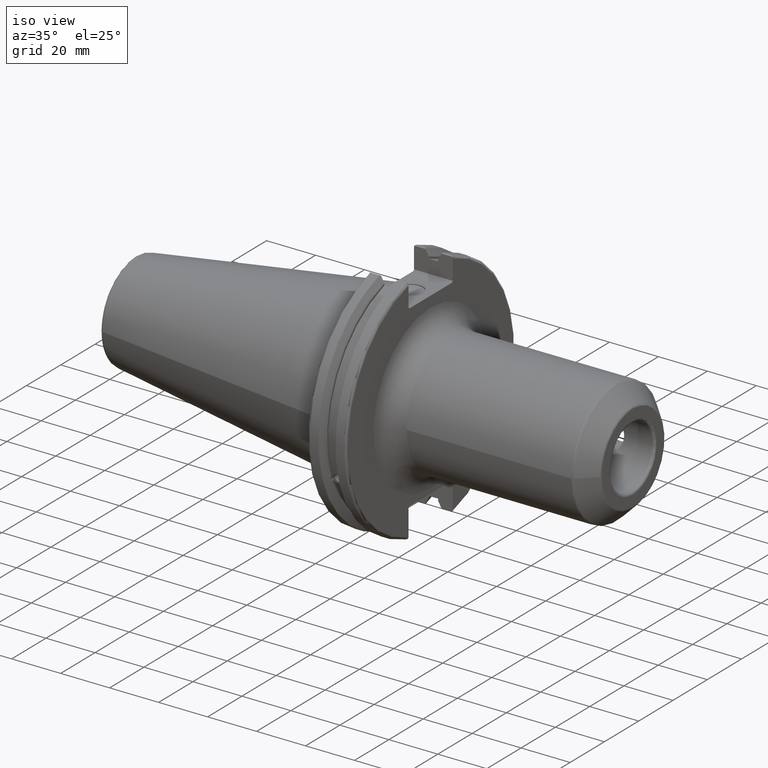
[diagram: clean part render]
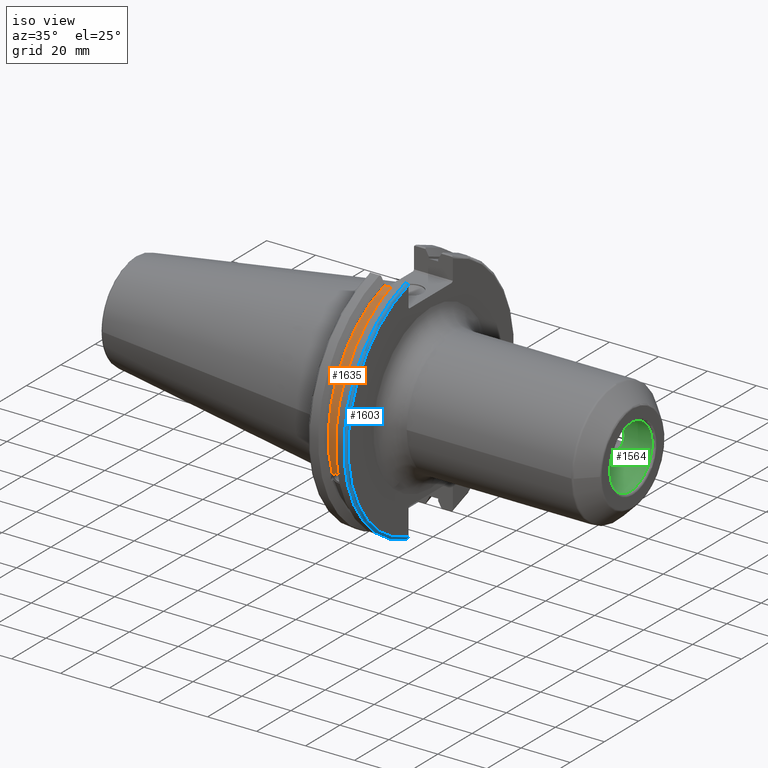
[diagram: same view with three faces highlighted in distinct colors, each labeled with its STEP entity id]
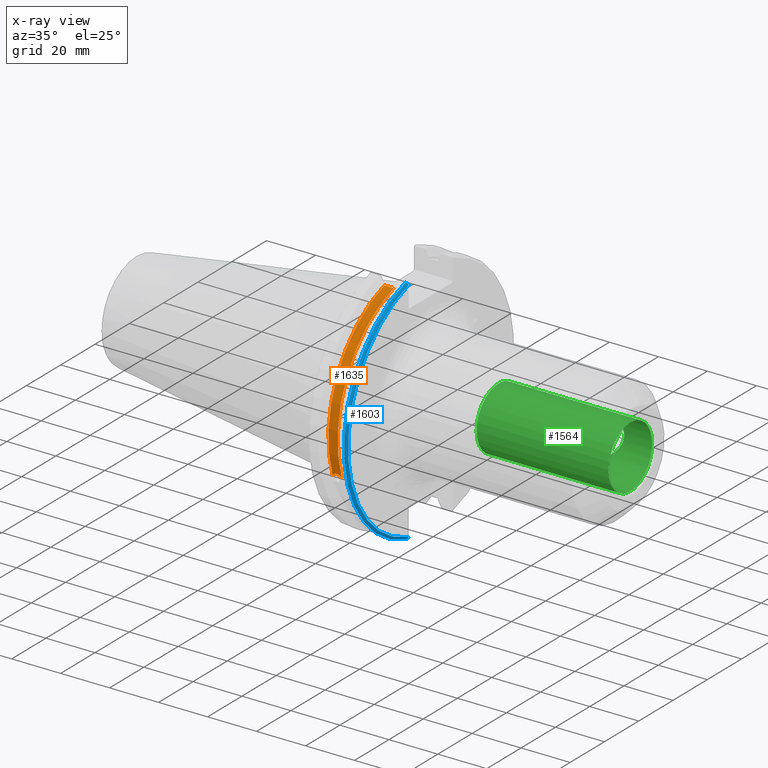
[diagram: x-ray of the same camera — body ghosted, the three highlighted faces saturated]
A machine part, iso view with three faces highlighted in distinct colors.
The next image is the same camera in x-ray (body ghosted, the three faces saturated) — at least one of them is partly hidden behind the body in this view.
Their STEP definitions:

[orange] entity #1635 — the highlighted cylindrical surface (partial cylindrical patch) has radius 45.6435 mm, axis along (1, 0, 0).
#205=FACE_OUTER_BOUND('',#320,.T.);
#320=EDGE_LOOP('',(#1493,#1494,#1495,#1496));
#347=B_SPLINE_CURVE_WITH_KNOTS('',3,(#2728,#2729,#2730,#2731,#2732,#2733,
#2734,#2735,#2736,#2737,#2738,#2739,#2740,#2741),.UNSPECIFIED.,.F.,.F.,
(4,2,2,2,2,2,4),(0.40154831257669,0.474697095495631,0.553813286063443,0.632929476631254,
0.712045667199066,0.791161857766877,0.864310640685818),.UNSPECIFIED.);
#444=LINE('',#3217,#538);
#538=VECTOR('',#2142,10.);
#640=CIRCLE('',#1826,45.6435);
#642=CIRCLE('',#1830,45.6435);
#699=VERTEX_POINT('',#2725);
#700=VERTEX_POINT('',#2727);
#783=VERTEX_POINT('',#3214);
#784=VERTEX_POINT('',#3216);
#877=EDGE_CURVE('',#700,#699,#347,.T.);
#988=EDGE_CURVE('',#784,#783,#444,.T.);
#1038=EDGE_CURVE('',#783,#700,#640,.T.);
#1040=EDGE_CURVE('',#784,#699,#642,.T.);
#1493=ORIENTED_EDGE('',*,*,#877,.T.);
#1494=ORIENTED_EDGE('',*,*,#1040,.F.);
#1495=ORIENTED_EDGE('',*,*,#988,.T.);
#1496=ORIENTED_EDGE('',*,*,#1038,.T.);
#1550=CYLINDRICAL_SURFACE('',#1829,45.6435);
#1635=ADVANCED_FACE('',(#205),#1550,.T.);
#1826=AXIS2_PLACEMENT_3D('',#3366,#2253,#2254);
#1829=AXIS2_PLACEMENT_3D('',#3369,#2259,#2260);
#1830=AXIS2_PLACEMENT_3D('',#3370,#2261,#2262);
#2142=DIRECTION('',(-1.,0.,0.));
#2253=DIRECTION('center_axis',(1.,0.,0.));
#2254=DIRECTION('ref_axis',(0.,0.,-1.));
#2259=DIRECTION('center_axis',(1.,0.,0.));
#2260=DIRECTION('ref_axis',(0.,-0.888619069115281,0.458645996390125));
#2261=DIRECTION('center_axis',(1.,0.,0.));
#2262=DIRECTION('ref_axis',(0.,0.,-1.));
#2725=CARTESIAN_POINT('',(13.0491,-43.1779814500336,-14.7983448449669));
#2727=CARTESIAN_POINT('',(9.2191,-43.1779814500336,-14.7983448449669));
#2728=CARTESIAN_POINT('Ctrl Pts',(9.2191,-43.1779814500335,-14.7983448449669));
#2729=CARTESIAN_POINT('Ctrl Pts',(9.32532177598176,-43.2545173750974,-14.5750315766731));
#2730=CARTESIAN_POINT('Ctrl Pts',(9.47680807557666,-43.3223492818373,-14.3712521044637));
#2731=CARTESIAN_POINT('Ctrl Pts',(9.83560503400179,-43.4340904392251,-14.0300988117073));
#2732=CARTESIAN_POINT('Ctrl Pts',(10.0717203280543,-43.4832903960863,-13.8760243976176));
#2733=CARTESIAN_POINT('Ctrl Pts',(10.5891059167872,-43.54802519266,-13.6715068146718));
#2734=CARTESIAN_POINT('Ctrl Pts',(10.870379364774,-43.5636826100883,-13.6211104428929));
#2735=CARTESIAN_POINT('Ctrl Pts',(11.397820635226,-43.5636826100883,-13.6211104428929));
#2736=CARTESIAN_POINT('Ctrl Pts',(11.6790940832128,-43.54802519266,-13.6715068146718));
#2737=CARTESIAN_POINT('Ctrl Pts',(12.1964796719457,-43.4832903960863,-13.8760243976176));
#2738=CARTESIAN_POINT('Ctrl Pts',(12.4325949659982,-43.4340904392251,-14.0300988117073));
#2739=CARTESIAN_POINT('Ctrl Pts',(12.7913919244233,-43.3223492818373,-14.3712521044637));
#2740=CARTESIAN_POINT('Ctrl Pts',(12.9428782240182,-43.2545173750974,-14.5750315766731));
#2741=CARTESIAN_POINT('Ctrl Pts',(13.0491,-43.1779814500335,-14.7983448449669));
#3214=CARTESIAN_POINT('',(9.2191,-12.95,43.7678716897452));
#3216=CARTESIAN_POINT('',(13.0491,-12.95,43.7678716897452));
#3217=CARTESIAN_POINT('',(11.1341,-12.95,43.7678716897452));
#3366=CARTESIAN_POINT('Origin',(9.2191,0.,0.));
#3369=CARTESIAN_POINT('Origin',(11.1341,0.,0.));
#3370=CARTESIAN_POINT('Origin',(13.0491,0.,0.));

[blue] entity #1603 — the highlighted toroidal blend (fillet) surface has major radius 48.2125 mm and minor (blend) radius 1 mm.
#39=TOROIDAL_SURFACE('',#1779,48.2125,1.);
#173=FACE_OUTER_BOUND('',#287,.T.);
#287=EDGE_LOOP('',(#1328,#1329,#1330,#1331,#1332,#1333));
#365=B_SPLINE_CURVE_WITH_KNOTS('',3,(#3167,#3168,#3169,#3170,#3171,#3172),
 .UNSPECIFIED.,.F.,.F.,(4,2,4),(0.097707143645253,0.112358403262293,0.150882178076498),
 .UNSPECIFIED.);
#366=B_SPLINE_CURVE_WITH_KNOTS('',3,(#3174,#3175,#3176,#3177,#3178,#3179),
 .UNSPECIFIED.,.F.,.F.,(4,2,4),(0.452859694247731,0.491383469061936,0.506034728678978),
 .UNSPECIFIED.);
#367=B_SPLINE_CURVE_WITH_KNOTS('',3,(#3181,#3182,#3183,#3184,#3185,#3186,
#3187,#3188),.UNSPECIFIED.,.F.,.F.,(4,2,2,4),(-0.104075769062722,-0.0730268503455477,
-0.0343639873656263,0.),.UNSPECIFIED.);
#368=B_SPLINE_CURVE_WITH_KNOTS('',3,(#3191,#3192,#3193,#3194,#3195,#3196,
#3197,#3198),.UNSPECIFIED.,.F.,.F.,(4,2,2,4),(0.,0.0364336453281818,0.0778720357014993,
0.104197480645881),.UNSPECIFIED.);
#587=CIRCLE('',#1704,48.2125);
#624=CIRCLE('',#1780,49.2125);
#677=VERTEX_POINT('',#2510);
#678=VERTEX_POINT('',#2512);
#776=VERTEX_POINT('',#3166);
#777=VERTEX_POINT('',#3173);
#778=VERTEX_POINT('',#3180);
#779=VERTEX_POINT('',#3189);
#850=EDGE_CURVE('',#678,#677,#587,.T.);
#978=EDGE_CURVE('',#776,#678,#365,.T.);
#979=EDGE_CURVE('',#677,#777,#366,.T.);
#980=EDGE_CURVE('',#777,#778,#367,.T.);
#981=EDGE_CURVE('',#778,#779,#624,.T.);
#982=EDGE_CURVE('',#779,#776,#368,.T.);
#1328=ORIENTED_EDGE('',*,*,#978,.T.);
#1329=ORIENTED_EDGE('',*,*,#850,.T.);
#1330=ORIENTED_EDGE('',*,*,#979,.T.);
#1331=ORIENTED_EDGE('',*,*,#980,.T.);
#1332=ORIENTED_EDGE('',*,*,#981,.T.);
#1333=ORIENTED_EDGE('',*,*,#982,.T.);
#1603=ADVANCED_FACE('',(#173),#39,.T.);
#1704=AXIS2_PLACEMENT_3D('',#2513,#1930,#1931);
#1779=AXIS2_PLACEMENT_3D('',#3165,#2133,#2134);
#1780=AXIS2_PLACEMENT_3D('',#3190,#2135,#2136);
#1930=DIRECTION('center_axis',(-1.,0.,0.));
#1931=DIRECTION('ref_axis',(0.,-1.,1.60812264967664E-16));
#2133=DIRECTION('center_axis',(1.,0.,0.));
#2134=DIRECTION('ref_axis',(0.,0.,-1.));
#2135=DIRECTION('center_axis',(1.,0.,0.));
#2136=DIRECTION('ref_axis',(0.,-1.,1.60812264967664E-16));
#2510=CARTESIAN_POINT('',(19.05,-12.95,46.4407434937254));
#2512=CARTESIAN_POINT('',(19.05,-12.95,-46.4407434937254));
#2513=CARTESIAN_POINT('Origin',(19.05,0.,0.));
#3165=CARTESIAN_POINT('Origin',(18.05,0.,0.));
#3166=CARTESIAN_POINT('',(18.9055020570566,-12.95,-46.9780755322917));
#3167=CARTESIAN_POINT('Ctrl Pts',(18.9055020570566,-12.95,-46.9780755322917));
#3168=CARTESIAN_POINT('Ctrl Pts',(18.9322353702005,-12.95,-46.9322596399785));
#3169=CARTESIAN_POINT('Ctrl Pts',(18.9549831813775,-12.95,-46.8849952622217));
#3170=CARTESIAN_POINT('Ctrl Pts',(19.0209992543299,-12.95,-46.7204975987179));
#3171=CARTESIAN_POINT('Ctrl Pts',(19.05,-12.95,-46.5691560764394));
#3172=CARTESIAN_POINT('Ctrl Pts',(19.05,-12.95,-46.4407434937254));
#3173=CARTESIAN_POINT('',(18.9055020570566,-12.95,46.9780755322918));
#3174=CARTESIAN_POINT('Ctrl Pts',(19.05,-12.95,46.4407434937254));
#3175=CARTESIAN_POINT('Ctrl Pts',(19.05,-12.95,46.5691560764394));
#3176=CARTESIAN_POINT('Ctrl Pts',(19.0209992543299,-12.95,46.7204975987179));
#3177=CARTESIAN_POINT('Ctrl Pts',(18.9549831813775,-12.95,46.8849952622217));
#3178=CARTESIAN_POINT('Ctrl Pts',(18.9322353702005,-12.95,46.9322596399785));
#3179=CARTESIAN_POINT('Ctrl Pts',(18.9055020570566,-12.95,46.9780755322918));
#3180=CARTESIAN_POINT('',(18.05,-13.4317035994433,47.3440544806494));
#3181=CARTESIAN_POINT('Ctrl Pts',(18.9055020570566,-12.95,46.9780755322918));
#3182=CARTESIAN_POINT('Ctrl Pts',(18.8571496772125,-13.0300321736484,47.0388807469102));
#3183=CARTESIAN_POINT('Ctrl Pts',(18.792640282015,-13.1083611826073,47.0983919657547));
#3184=CARTESIAN_POINT('Ctrl Pts',(18.6399248789208,-13.2478194810695,47.2043467509586));
#3185=CARTESIAN_POINT('Ctrl Pts',(18.5186188350904,-13.3242014686233,47.2623787015413));
#3186=CARTESIAN_POINT('Ctrl Pts',(18.2983889675417,-13.4067722493645,47.3251126473446));
#3187=CARTESIAN_POINT('Ctrl Pts',(18.1645466245521,-13.4317035994433,47.3440544806494));
#3188=CARTESIAN_POINT('Ctrl Pts',(18.05,-13.4317035994433,47.3440544806494));
#3189=CARTESIAN_POINT('',(18.05,-13.4317035994433,-47.3440544806494));
#3190=CARTESIAN_POINT('Origin',(18.05,0.,0.));
#3191=CARTESIAN_POINT('Ctrl Pts',(18.05,-13.4317035994433,-47.3440544806494));
#3192=CARTESIAN_POINT('Ctrl Pts',(18.1714454844273,-13.4317035994433,-47.3440544806494));
#3193=CARTESIAN_POINT('Ctrl Pts',(18.3128758164404,-13.4037095171132,-47.3227857070233));
#3194=CARTESIAN_POINT('Ctrl Pts',(18.54495745946,-13.3111366376071,-47.2524525703658));
#3195=CARTESIAN_POINT('Ctrl Pts',(18.6710431007969,-13.2254637570201,-47.1873617743322));
#3196=CARTESIAN_POINT('Ctrl Pts',(18.811782280389,-13.0847856162862,-47.0804802022157));
#3197=CARTESIAN_POINT('Ctrl Pts',(18.8641312352177,-13.0184763978125,-47.0301011349397));
#3198=CARTESIAN_POINT('Ctrl Pts',(18.9055020570566,-12.95,-46.9780755322917));

[green] entity #1564 — the highlighted cylindrical surface (bore or boss wall) has radius 12.7 mm, axis along (1, 0, 0).
#62=FACE_BOUND('',#231,.T.);
#63=FACE_BOUND('',#232,.T.);
#134=FACE_OUTER_BOUND('',#230,.T.);
#230=EDGE_LOOP('',(#1104,#1105,#1106,#1107,#1108));
#231=EDGE_LOOP('',(#1109,#1110));
#232=EDGE_LOOP('',(#1111,#1112));
#330=B_SPLINE_CURVE_WITH_KNOTS('',3,(#2291,#2292,#2293,#2294,#2295,#2296,
#2297,#2298,#2299,#2300,#2301,#2302,#2303,#2304,#2305,#2306,#2307,#2308,
#2309,#2310,#2311,#2312,#2313,#2314,#2315,#2316),.UNSPECIFIED.,.F.,.F.,
(4,2,2,2,2,2,2,2,2,2,2,2,4),(0.,0.342831187342052,0.685662374684105,1.02424067190905,
1.36281896913399,1.70139726635893,2.03997556358388,2.38280675092593,2.72563793826798,
3.06846912561003,3.41130031295209,3.74987861017703,4.08845690740197),
 .UNSPECIFIED.);
#331=B_SPLINE_CURVE_WITH_KNOTS('',3,(#2317,#2318,#2319,#2320,#2321,#2322,
#2323,#2324,#2325,#2326),.UNSPECIFIED.,.F.,.F.,(4,2,2,2,4),(4.08845690740197,
4.42703520462692,4.76561350185186,5.10844468919391,5.45127587653596),
 .UNSPECIFIED.);
#334=B_SPLINE_CURVE_WITH_KNOTS('',3,(#2376,#2377,#2378,#2379,#2380,#2381,
#2382,#2383,#2384,#2385,#2386,#2387,#2388,#2389,#2390,#2391,#2392,#2393,
#2394,#2395,#2396,#2397,#2398,#2399,#2400,#2401),.UNSPECIFIED.,.F.,.F.,
(4,2,2,2,2,2,2,2,2,2,2,2,4),(0.,0.342831187342052,0.685662374684103,1.02424067190905,
1.36281896913399,1.70139726635893,2.03997556358388,2.38280675092593,2.72563793826798,
3.06846912561003,3.41130031295208,3.74987861017703,4.08845690740197),
 .UNSPECIFIED.);
#335=B_SPLINE_CURVE_WITH_KNOTS('',3,(#2402,#2403,#2404,#2405,#2406,#2407,
#2408,#2409,#2410,#2411),.UNSPECIFIED.,.F.,.F.,(4,2,2,2,4),(4.08845690740197,
4.42703520462691,4.76561350185186,5.10844468919391,5.45127587653596),
 .UNSPECIFIED.);
#382=LINE('',#2492,#476);
#476=VECTOR('',#1912,12.7);
#580=CIRCLE('',#1694,12.7);
#581=CIRCLE('',#1695,12.7);
#583=CIRCLE('',#1698,12.7);
#646=VERTEX_POINT('',#2288);
#647=VERTEX_POINT('',#2290);
#652=VERTEX_POINT('',#2373);
#653=VERTEX_POINT('',#2375);
#667=VERTEX_POINT('',#2485);
#668=VERTEX_POINT('',#2486);
#669=VERTEX_POINT('',#2491);
#809=EDGE_CURVE('',#647,#646,#330,.T.);
#810=EDGE_CURVE('',#646,#647,#331,.T.);
#817=EDGE_CURVE('',#653,#652,#334,.T.);
#818=EDGE_CURVE('',#652,#653,#335,.T.);
#837=EDGE_CURVE('',#667,#668,#580,.T.);
#838=EDGE_CURVE('',#668,#667,#581,.T.);
#840=EDGE_CURVE('',#668,#669,#382,.T.);
#841=EDGE_CURVE('',#669,#669,#583,.T.);
#1104=ORIENTED_EDGE('',*,*,#837,.F.);
#1105=ORIENTED_EDGE('',*,*,#838,.F.);
#1106=ORIENTED_EDGE('',*,*,#840,.T.);
#1107=ORIENTED_EDGE('',*,*,#841,.F.);
#1108=ORIENTED_EDGE('',*,*,#840,.F.);
#1109=ORIENTED_EDGE('',*,*,#809,.T.);
#1110=ORIENTED_EDGE('',*,*,#810,.T.);
#1111=ORIENTED_EDGE('',*,*,#817,.T.);
#1112=ORIENTED_EDGE('',*,*,#818,.T.);
#1527=CYLINDRICAL_SURFACE('',#1697,12.7);
#1564=ADVANCED_FACE('',(#134,#62,#63),#1527,.F.);
#1694=AXIS2_PLACEMENT_3D('',#2487,#1904,#1905);
#1695=AXIS2_PLACEMENT_3D('',#2488,#1906,#1907);
#1697=AXIS2_PLACEMENT_3D('',#2490,#1910,#1911);
#1698=AXIS2_PLACEMENT_3D('',#2493,#1913,#1914);
#1904=DIRECTION('center_axis',(-1.,0.,0.));
#1905=DIRECTION('ref_axis',(0.,-1.,1.83697019872103E-16));
#1906=DIRECTION('center_axis',(-1.,0.,0.));
#1907=DIRECTION('ref_axis',(0.,-1.,1.83697019872103E-16));
#1910=DIRECTION('center_axis',(1.,0.,0.));
#1911=DIRECTION('ref_axis',(0.,1.,0.));
#1912=DIRECTION('',(-1.,0.,0.));
#1913=DIRECTION('center_axis',(1.,0.,0.));
#1914=DIRECTION('ref_axis',(0.,0.,-1.));
#2288=CARTESIAN_POINT('',(48.9386,12.7,1.77935869201005E-15));
#2290=CARTESIAN_POINT('',(57.6,9.28817258883575,8.6614));
#2291=CARTESIAN_POINT('Ctrl Pts',(57.6,9.28817258883575,8.6614));
#2292=CARTESIAN_POINT('Ctrl Pts',(58.7427706244735,9.28817258883575,8.6614));
#2293=CARTESIAN_POINT('Ctrl Pts',(59.9131925798569,9.52028980979603,8.42510703939285));
#2294=CARTESIAN_POINT('Ctrl Pts',(62.0248186480471,10.2403122930747,7.53354592798));
#2295=CARTESIAN_POINT('Ctrl Pts',(62.9715110112521,10.7111190531903,6.87755833788623));
#2296=CARTESIAN_POINT('Ctrl Pts',(64.4682169272623,11.5350374541816,5.38085242187607));
#2297=CARTESIAN_POINT('Ctrl Pts',(65.1302869359934,11.9523850753063,4.43227008771076));
#2298=CARTESIAN_POINT('Ctrl Pts',(66.0277674149023,12.5372065673924,2.30715875855382));
#2299=CARTESIAN_POINT('Ctrl Pts',(66.2614,12.7,1.12859432408314));
#2300=CARTESIAN_POINT('Ctrl Pts',(66.2614,12.7,-1.12859432408315));
#2301=CARTESIAN_POINT('Ctrl Pts',(66.0277674149023,12.5372065673924,-2.30715875855382));
#2302=CARTESIAN_POINT('Ctrl Pts',(65.1302869359934,11.9523850753063,-4.43227008771076));
#2303=CARTESIAN_POINT('Ctrl Pts',(64.4682169272623,11.5350374541816,-5.38085242187607));
#2304=CARTESIAN_POINT('Ctrl Pts',(62.9715110112521,10.7111190531903,-6.87755833788623));
#2305=CARTESIAN_POINT('Ctrl Pts',(62.0248186480471,10.2403122930747,-7.53354592798));
#2306=CARTESIAN_POINT('Ctrl Pts',(59.9131925798569,9.52028980979604,-8.42510703939285));
#2307=CARTESIAN_POINT('Ctrl Pts',(58.7427706244735,9.28817258883575,-8.6614));
#2308=CARTESIAN_POINT('Ctrl Pts',(56.4572293755265,9.28817258883575,-8.6614));
#2309=CARTESIAN_POINT('Ctrl Pts',(55.2868074201431,9.52028980979603,-8.42510703939285));
#2310=CARTESIAN_POINT('Ctrl Pts',(53.1751813519529,10.2403122930747,-7.53354592798));
#2311=CARTESIAN_POINT('Ctrl Pts',(52.2284889887479,10.7111190531903,-6.87755833788623));
#2312=CARTESIAN_POINT('Ctrl Pts',(50.7317830727377,11.5350374541816,-5.38085242187607));
#2313=CARTESIAN_POINT('Ctrl Pts',(50.0697130640066,11.9523850753063,-4.43227008771076));
#2314=CARTESIAN_POINT('Ctrl Pts',(49.1722325850977,12.5372065673924,-2.30715875855382));
#2315=CARTESIAN_POINT('Ctrl Pts',(48.9386,12.7,-1.12859432408314));
#2316=CARTESIAN_POINT('Ctrl Pts',(48.9386,12.7,2.77555756156289E-16));
#2317=CARTESIAN_POINT('Ctrl Pts',(48.9386,12.7,2.22044604925031E-15));
#2318=CARTESIAN_POINT('Ctrl Pts',(48.9386,12.7,1.12859432408315));
#2319=CARTESIAN_POINT('Ctrl Pts',(49.1722325850977,12.5372065673924,2.30715875855383));
#2320=CARTESIAN_POINT('Ctrl Pts',(50.0697130640066,11.9523850753063,4.43227008771077));
#2321=CARTESIAN_POINT('Ctrl Pts',(50.7317830727377,11.5350374541816,5.38085242187607));
#2322=CARTESIAN_POINT('Ctrl Pts',(52.2284889887479,10.7111190531903,6.87755833788624));
#2323=CARTESIAN_POINT('Ctrl Pts',(53.1751813519529,10.2403122930747,7.53354592798001));
#2324=CARTESIAN_POINT('Ctrl Pts',(55.2868074201431,9.52028980979603,8.42510703939285));
#2325=CARTESIAN_POINT('Ctrl Pts',(56.4572293755265,9.28817258883575,8.6614));
#2326=CARTESIAN_POINT('Ctrl Pts',(57.6,9.28817258883575,8.6614));
#2373=CARTESIAN_POINT('',(71.8386,12.7,9.46691423541179E-16));
#2375=CARTESIAN_POINT('',(80.5,9.28817258883575,8.6614));
#2376=CARTESIAN_POINT('Ctrl Pts',(80.5,9.28817258883575,8.6614));
#2377=CARTESIAN_POINT('Ctrl Pts',(81.6427706244735,9.28817258883575,8.6614));
#2378=CARTESIAN_POINT('Ctrl Pts',(82.8131925798569,9.52028980979603,8.42510703939285));
#2379=CARTESIAN_POINT('Ctrl Pts',(84.9248186480471,10.2403122930747,7.53354592798));
#2380=CARTESIAN_POINT('Ctrl Pts',(85.8715110112521,10.7111190531903,6.87755833788624));
#2381=CARTESIAN_POINT('Ctrl Pts',(87.3682169272622,11.5350374541816,5.38085242187607));
#2382=CARTESIAN_POINT('Ctrl Pts',(88.0302869359934,11.9523850753063,4.43227008771077));
#2383=CARTESIAN_POINT('Ctrl Pts',(88.9277674149023,12.5372065673924,2.30715875855383));
#2384=CARTESIAN_POINT('Ctrl Pts',(89.1614,12.7,1.12859432408314));
#2385=CARTESIAN_POINT('Ctrl Pts',(89.1614,12.7,-1.12859432408315));
#2386=CARTESIAN_POINT('Ctrl Pts',(88.9277674149023,12.5372065673924,-2.30715875855383));
#2387=CARTESIAN_POINT('Ctrl Pts',(88.0302869359934,11.9523850753063,-4.43227008771078));
#2388=CARTESIAN_POINT('Ctrl Pts',(87.3682169272623,11.5350374541816,-5.38085242187608));
#2389=CARTESIAN_POINT('Ctrl Pts',(85.8715110112521,10.7111190531903,-6.87755833788624));
#2390=CARTESIAN_POINT('Ctrl Pts',(84.9248186480471,10.2403122930747,-7.53354592798));
#2391=CARTESIAN_POINT('Ctrl Pts',(82.8131925798569,9.52028980979603,-8.42510703939285));
#2392=CARTESIAN_POINT('Ctrl Pts',(81.6427706244735,9.28817258883575,-8.6614));
#2393=CARTESIAN_POINT('Ctrl Pts',(79.3572293755265,9.28817258883575,-8.6614));
#2394=CARTESIAN_POINT('Ctrl Pts',(78.1868074201431,9.52028980979604,-8.42510703939285));
#2395=CARTESIAN_POINT('Ctrl Pts',(76.0751813519529,10.2403122930747,-7.53354592798));
#2396=CARTESIAN_POINT('Ctrl Pts',(75.1284889887479,10.7111190531903,-6.87755833788624));
#2397=CARTESIAN_POINT('Ctrl Pts',(73.6317830727378,11.5350374541816,-5.38085242187607));
#2398=CARTESIAN_POINT('Ctrl Pts',(72.9697130640066,11.9523850753063,-4.43227008771077));
#2399=CARTESIAN_POINT('Ctrl Pts',(72.0722325850977,12.5372065673924,-2.30715875855382));
#2400=CARTESIAN_POINT('Ctrl Pts',(71.8386,12.7,-1.12859432408314));
#2401=CARTESIAN_POINT('Ctrl Pts',(71.8386,12.7,5.55111512312578E-16));
#2402=CARTESIAN_POINT('Ctrl Pts',(71.8386,12.7,8.32667268468867E-16));
#2403=CARTESIAN_POINT('Ctrl Pts',(71.8386,12.7,1.12859432408315));
#2404=CARTESIAN_POINT('Ctrl Pts',(72.0722325850977,12.5372065673924,2.30715875855382));
#2405=CARTESIAN_POINT('Ctrl Pts',(72.9697130640066,11.9523850753063,4.43227008771077));
#2406=CARTESIAN_POINT('Ctrl Pts',(73.6317830727378,11.5350374541816,5.38085242187607));
#2407=CARTESIAN_POINT('Ctrl Pts',(75.1284889887479,10.7111190531903,6.87755833788624));
#2408=CARTESIAN_POINT('Ctrl Pts',(76.0751813519529,10.2403122930747,7.53354592798));
#2409=CARTESIAN_POINT('Ctrl Pts',(78.1868074201431,9.52028980979603,8.42510703939285));
#2410=CARTESIAN_POINT('Ctrl Pts',(79.3572293755265,9.28817258883575,8.6614));
#2411=CARTESIAN_POINT('Ctrl Pts',(80.5,9.28817258883575,8.6614));
#2485=CARTESIAN_POINT('',(100.6,-1.55530143491714E-15,12.7));
#2486=CARTESIAN_POINT('',(100.6,-12.7,-1.55530143491714E-15));
#2487=CARTESIAN_POINT('Origin',(100.6,0.,0.));
#2488=CARTESIAN_POINT('Origin',(100.6,0.,0.));
#2490=CARTESIAN_POINT('Origin',(74.14,0.,0.));
#2491=CARTESIAN_POINT('',(46.68,-12.7,-1.55530143491714E-15));
#2492=CARTESIAN_POINT('',(74.14,-12.7,-1.55530143491714E-15));
#2493=CARTESIAN_POINT('Origin',(46.68,0.,0.));